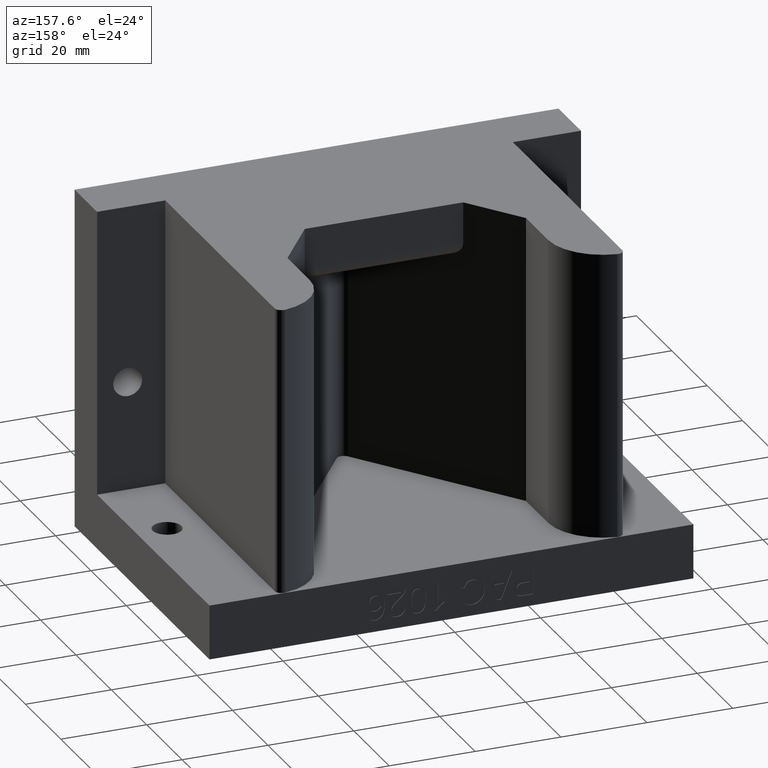
[diagram: clean part render]
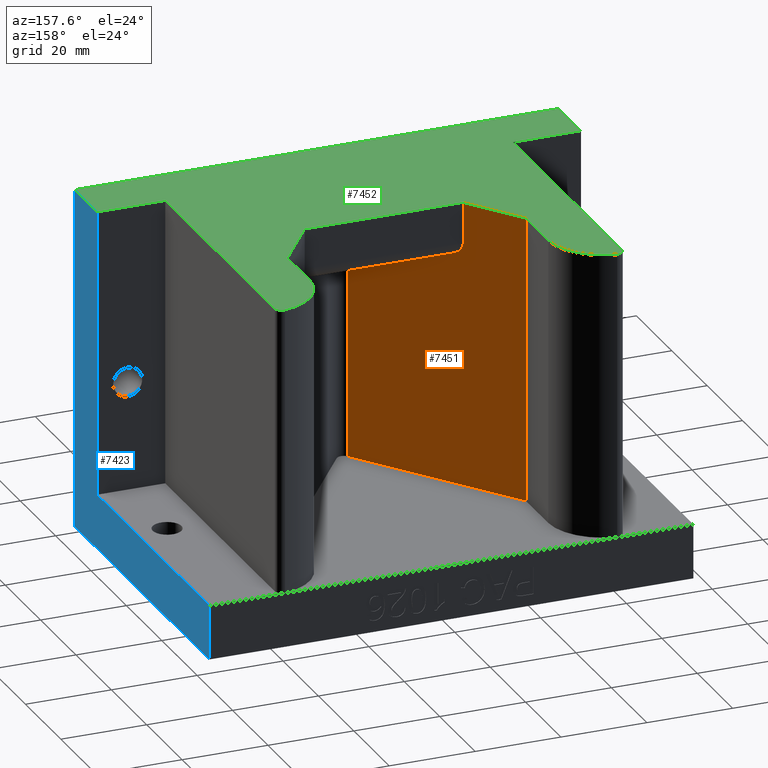
[diagram: same view with three faces highlighted in distinct colors, each labeled with its STEP entity id]
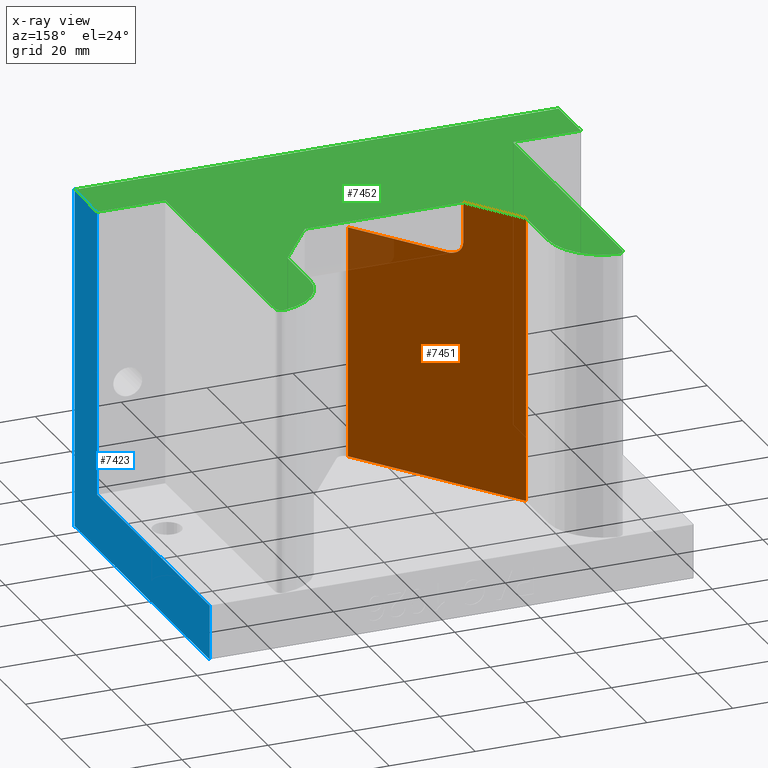
[diagram: x-ray of the same camera — body ghosted, the three highlighted faces saturated]
A machine part, auxiliary view with three faces highlighted in distinct colors.
The next image is the same camera in x-ray (body ghosted, the three faces saturated) — at least one of them is partly hidden behind the body in this view.
Their STEP definitions:

[orange] entity #7451 — the highlighted planar face has unit normal (-0.809, -0.5878, 0).
#221 = LINE ( 'NONE', #7052, #222 ) ;
#222 = VECTOR ( 'NONE', #7051, 39.37007874015748900 ) ;
#407 = DIRECTION ( 'NONE',  ( -0.0000000000000000000, -0.0000000000000000000, 1.000000000000000000 ) ) ;
#420 = CARTESIAN_POINT ( 'NONE',  ( -0.7265425280053518000, -1.554635595738830900E-016, -3.937007874019685500E-005 ) ) ;
#459 = DIRECTION ( 'NONE',  ( -0.0000000000000000000, -0.0000000000000000000, 1.000000000000000000 ) ) ;
#464 = CARTESIAN_POINT ( 'NONE',  ( -1.093749999999991600, 0.5054177255153523600, 0.5000000000000001100 ) ) ;
#525 = EDGE_LOOP ( 'NONE', ( #1392, #1396, #1388, #1387, #1386, #1391, #1401 ) ) ;
#527 = EDGE_CURVE ( 'NONE', #8565, #8544, #7413, .T. ) ;
#1386 = ORIENTED_EDGE ( 'NONE', *, *, #3193, .T. ) ;
#1387 = ORIENTED_EDGE ( 'NONE', *, *, #3108, .T. ) ;
#1388 = ORIENTED_EDGE ( 'NONE', *, *, #6970, .F. ) ;
#1391 = ORIENTED_EDGE ( 'NONE', *, *, #3126, .F. ) ;
#1392 = ORIENTED_EDGE ( 'NONE', *, *, #5826, .T. ) ;
#1396 = ORIENTED_EDGE ( 'NONE', *, *, #7544, .T. ) ;
#1401 = ORIENTED_EDGE ( 'NONE', *, *, #527, .T. ) ;
#1426 = LINE ( 'NONE', #464, #1435 ) ;
#1435 = VECTOR ( 'NONE', #459, 39.37007874015748100 ) ;
#1460 = VECTOR ( 'NONE', #407, 39.37007874015748100 ) ;
#1463 = LINE ( 'NONE', #420, #1460 ) ;
#1928 = DIRECTION ( 'NONE',  ( 0.5877852522924684700, -0.8090169943749507800, -0.0000000000000000000 ) ) ;
#2018 = CARTESIAN_POINT ( 'NONE',  ( 1.239269950325174900E-016, -1.000000000000000200, 2.625000000000000000 ) ) ;
#3108 = EDGE_CURVE ( 'NONE', #8557, #8579, #1426, .T. ) ;
#3126 = EDGE_CURVE ( 'NONE', #8565, #8532, #1463, .T. ) ;
#3193 = EDGE_CURVE ( 'NONE', #8579, #8532, #6015, .T. ) ;
#3896 = CARTESIAN_POINT ( 'NONE',  ( -0.05056356214843377900, -0.9304052272242743200, 0.5000000000000001100 ) ) ;
#3897 = CARTESIAN_POINT ( 'NONE',  ( -0.05056356214843375800, -0.9304052272242743200, 0.5000000000000001100 ) ) ;
#3898 = DIRECTION ( 'NONE',  ( -0.0000000000000000000, -0.0000000000000000000, -1.000000000000000000 ) ) ;
#3920 = CARTESIAN_POINT ( 'NONE',  ( -0.7265425280053518000, -1.554635595738830900E-016, 3.125000000000000000 ) ) ;
#3932 = CARTESIAN_POINT ( 'NONE',  ( -0.6357247120046830600, -0.1249999999999999000, 2.625000000000000000 ) ) ;
#3933 = CARTESIAN_POINT ( 'NONE',  ( -0.05056356214843377900, -0.9304052272242743200, 2.625000000000000000 ) ) ;
#3945 = CARTESIAN_POINT ( 'NONE',  ( -1.093749999999991600, 0.5054177255153523600, 0.5000000000000001100 ) ) ;
#3953 = CARTESIAN_POINT ( 'NONE',  ( -0.7265425280053518000, -1.554635595738830900E-016, 2.749999999999998700 ) ) ;
#3967 = CARTESIAN_POINT ( 'NONE',  ( -1.093749999999991600, 0.5054177255153523600, 3.125000000000000000 ) ) ;
#4063 = AXIS2_PLACEMENT_3D ( 'NONE', #6412, #6405, #6404 ) ;
#4328 = DIRECTION ( 'NONE',  ( 0.5877852522924688100, -0.8090169943749504500, 0.0000000000000000000 ) ) ;
#4329 = CARTESIAN_POINT ( 'NONE',  ( -1.093749999999991600, 0.5054177255153523600, 3.125000000000000000 ) ) ;
#5826 = EDGE_CURVE ( 'NONE', #8544, #8545, #6098, .T. ) ;
#6015 = LINE ( 'NONE', #4329, #6016 ) ;
#6016 = VECTOR ( 'NONE', #4328, 39.37007874015748900 ) ;
#6098 = LINE ( 'NONE', #2018, #6099 ) ;
#6099 = VECTOR ( 'NONE', #1928, 39.37007874015748900 ) ;
#6404 = DIRECTION ( 'NONE',  ( 0.5877852522924684700, -0.8090169943749507800, 0.0000000000000000000 ) ) ;
#6405 = DIRECTION ( 'NONE',  ( -0.8090169943749507800, -0.5877852522924684700, 0.0000000000000000000 ) ) ;
#6408 = PLANE ( 'NONE',  #4063 ) ;
#6412 = CARTESIAN_POINT ( 'NONE',  ( 1.239269950325174900E-016, -1.000000000000000200, 0.5000000000000001100 ) ) ;
#6970 = EDGE_CURVE ( 'NONE', #8557, #8528, #221, .T. ) ;
#7051 = DIRECTION ( 'NONE',  ( 0.5877852522924684700, -0.8090169943749507800, -0.0000000000000000000 ) ) ;
#7052 = CARTESIAN_POINT ( 'NONE',  ( 1.239269950325174900E-016, -1.000000000000000200, 0.5000000000000001100 ) ) ;
#7413 =( BOUNDED_CURVE ( )  B_SPLINE_CURVE ( 3, ( #8428, #8414, #8413, #8412 ),
 .UNSPECIFIED., .F., .F. ) 
 B_SPLINE_CURVE_WITH_KNOTS ( ( 4, 4 ),
 ( 8.741913579725642300E-015, 1.570796326794894300 ),
 .UNSPECIFIED. ) 
 CURVE ( )  GEOMETRIC_REPRESENTATION_ITEM ( )  RATIONAL_B_SPLINE_CURVE ( ( 1.000000000000000000, 0.8047378541243676000, 0.8047378541243676000, 1.000000000000000000 ) ) 
 REPRESENTATION_ITEM ( '' )  );
#7451 = ADVANCED_FACE ( 'NONE', ( #7571 ), #6408, .F. ) ;
#7544 = EDGE_CURVE ( 'NONE', #8545, #8528, #7677, .T. ) ;
#7571 = FACE_OUTER_BOUND ( 'NONE', #525, .T. ) ;
#7665 = VECTOR ( 'NONE', #3898, 39.37007874015748100 ) ;
#7677 = LINE ( 'NONE', #3897, #7665 ) ;
#8412 = CARTESIAN_POINT ( 'NONE',  ( -0.6357247120046830600, -0.1249999999999999000, 2.625000000000000000 ) ) ;
#8413 = CARTESIAN_POINT ( 'NONE',  ( -0.6889245569127703300, -0.05177669529663735800, 2.625000000000000000 ) ) ;
#8414 = CARTESIAN_POINT ( 'NONE',  ( -0.7265425280053516800, -7.767042014219261300E-016, 2.676776695296636500 ) ) ;
#8428 = CARTESIAN_POINT ( 'NONE',  ( -0.7265425280053518000, -1.554635595738830900E-016, 2.749999999999998700 ) ) ;
#8528 = VERTEX_POINT ( 'NONE', #3896 ) ;
#8532 = VERTEX_POINT ( 'NONE', #3920 ) ;
#8544 = VERTEX_POINT ( 'NONE', #3932 ) ;
#8545 = VERTEX_POINT ( 'NONE', #3933 ) ;
#8557 = VERTEX_POINT ( 'NONE', #3945 ) ;
#8565 = VERTEX_POINT ( 'NONE', #3953 ) ;
#8579 = VERTEX_POINT ( 'NONE', #3967 ) ;

[blue] entity #7423 — the highlighted planar face has unit normal (-1, -0, 0).
#191 = LINE ( 'NONE', #7108, #192 ) ;
#192 = VECTOR ( 'NONE', #7107, 39.37007874015748100 ) ;
#204 = FACE_OUTER_BOUND ( 'NONE', #6547, .T. ) ;
#1191 = VERTEX_POINT ( 'NONE', #8379 ) ;
#1484 = VECTOR ( 'NONE', #5490, 39.37007874015748100 ) ;
#1498 = LINE ( 'NONE', #5497, #1484 ) ;
#1503 = LINE ( 'NONE', #5462, #1504 ) ;
#1504 = VECTOR ( 'NONE', #5461, 39.37007874015748100 ) ;
#1519 = LINE ( 'NONE', #4369, #1521 ) ;
#1521 = VECTOR ( 'NONE', #4368, 39.37007874015748100 ) ;
#1527 = LINE ( 'NONE', #4366, #1528 ) ;
#1528 = VECTOR ( 'NONE', #4364, 39.37007874015748100 ) ;
#3156 = EDGE_CURVE ( 'NONE', #8534, #8573, #1498, .T. ) ;
#3160 = EDGE_CURVE ( 'NONE', #8530, #8573, #1503, .T. ) ;
#3186 = EDGE_CURVE ( 'NONE', #8530, #8524, #1519, .T. ) ;
#3187 = EDGE_CURVE ( 'NONE', #8524, #1191, #1527, .T. ) ;
#3191 = EDGE_CURVE ( 'NONE', #8534, #8583, #5776, .T. ) ;
#3899 = CARTESIAN_POINT ( 'NONE',  ( 2.218749999999999600, -1.500000000000000200, 0.0000000000000000000 ) ) ;
#3918 = CARTESIAN_POINT ( 'NONE',  ( 2.218749999999999600, -1.500000000000000200, 3.125000000000000000 ) ) ;
#3922 = CARTESIAN_POINT ( 'NONE',  ( 2.218749999999999600, -1.000000000000000000, 0.5000000000000001100 ) ) ;
#3961 = CARTESIAN_POINT ( 'NONE',  ( 2.218749999999999600, -1.000000000000000000, 3.125000000000000000 ) ) ;
#3971 = CARTESIAN_POINT ( 'NONE',  ( 2.218749999999999600, 1.500000000000000200, 0.5000000000000001100 ) ) ;
#4037 = AXIS2_PLACEMENT_3D ( 'NONE', #6629, #6623, #6622 ) ;
#4334 = DIRECTION ( 'NONE',  ( -1.092739197465705300E-016, 1.000000000000000000, 0.0000000000000000000 ) ) ;
#4335 = CARTESIAN_POINT ( 'NONE',  ( 2.218749999999999600, -1.000000000000000000, 0.5000000000000001100 ) ) ;
#4364 = DIRECTION ( 'NONE',  ( -9.106159978880878600E-017, 1.000000000000000000, -0.0000000000000000000 ) ) ;
#4366 = CARTESIAN_POINT ( 'NONE',  ( 2.218749999999999600, 1.500000000000000200, 0.0000000000000000000 ) ) ;
#4368 = DIRECTION ( 'NONE',  ( -0.0000000000000000000, -0.0000000000000000000, -1.000000000000000000 ) ) ;
#4369 = CARTESIAN_POINT ( 'NONE',  ( 2.218749999999999600, -1.500000000000000200, 3.125000000000000000 ) ) ;
#4513 = ORIENTED_EDGE ( 'NONE', *, *, #3191, .F. ) ;
#4518 = ORIENTED_EDGE ( 'NONE', *, *, #6915, .F. ) ;
#4558 = ORIENTED_EDGE ( 'NONE', *, *, #3160, .F. ) ;
#4559 = ORIENTED_EDGE ( 'NONE', *, *, #3156, .T. ) ;
#5461 = DIRECTION ( 'NONE',  ( -9.106159978880878600E-017, 1.000000000000000000, -0.0000000000000000000 ) ) ;
#5462 = CARTESIAN_POINT ( 'NONE',  ( 2.218749999999999600, 1.500000000000000200, 3.125000000000000000 ) ) ;
#5490 = DIRECTION ( 'NONE',  ( -0.0000000000000000000, -0.0000000000000000000, 1.000000000000000000 ) ) ;
#5497 = CARTESIAN_POINT ( 'NONE',  ( 2.218749999999999600, -1.000000000000000000, 0.5000000000000001100 ) ) ;
#5613 = ORIENTED_EDGE ( 'NONE', *, *, #3187, .T. ) ;
#5614 = ORIENTED_EDGE ( 'NONE', *, *, #3186, .T. ) ;
#5776 = LINE ( 'NONE', #4335, #6012 ) ;
#6012 = VECTOR ( 'NONE', #4334, 39.37007874015748100 ) ;
#6547 = EDGE_LOOP ( 'NONE', ( #4513, #4559, #4558, #5614, #5613, #4518 ) ) ;
#6622 = DIRECTION ( 'NONE',  ( 9.106159978880877400E-017, -1.000000000000000000, 0.0000000000000000000 ) ) ;
#6623 = DIRECTION ( 'NONE',  ( -1.000000000000000000, -9.106159978880877400E-017, 0.0000000000000000000 ) ) ;
#6628 = PLANE ( 'NONE',  #4037 ) ;
#6629 = CARTESIAN_POINT ( 'NONE',  ( 2.218749999999999600, 1.500000000000000200, 3.125000000000000000 ) ) ;
#6915 = EDGE_CURVE ( 'NONE', #8583, #1191, #191, .T. ) ;
#7107 = DIRECTION ( 'NONE',  ( -0.0000000000000000000, -0.0000000000000000000, -1.000000000000000000 ) ) ;
#7108 = CARTESIAN_POINT ( 'NONE',  ( 2.218749999999999600, 1.500000000000000200, 3.125000000000000000 ) ) ;
#7423 = ADVANCED_FACE ( 'NONE', ( #204 ), #6628, .F. ) ;
#8379 = CARTESIAN_POINT ( 'NONE',  ( 2.218749999999999600, 1.500000000000000200, 0.0000000000000000000 ) ) ;
#8524 = VERTEX_POINT ( 'NONE', #3899 ) ;
#8530 = VERTEX_POINT ( 'NONE', #3918 ) ;
#8534 = VERTEX_POINT ( 'NONE', #3922 ) ;
#8573 = VERTEX_POINT ( 'NONE', #3961 ) ;
#8583 = VERTEX_POINT ( 'NONE', #3971 ) ;

[green] entity #7452 — the highlighted planar face has unit normal (-0, 0, 1).
#297 = DIRECTION ( 'NONE',  ( -1.092739197465705300E-016, 1.000000000000000000, -0.0000000000000000000 ) ) ;
#298 = CARTESIAN_POINT ( 'NONE',  ( -1.593750000000000400, 1.499999999999999800, 3.125000000000000000 ) ) ;
#1220 = VERTEX_POINT ( 'NONE', #8346 ) ;
#1474 = VECTOR ( 'NONE', #297, 39.37007874015748100 ) ;
#1478 = LINE ( 'NONE', #298, #1474 ) ;
#1480 = LINE ( 'NONE', #5548, #1489 ) ;
#1482 = LINE ( 'NONE', #5589, #1483 ) ;
#1483 = VECTOR ( 'NONE', #5588, 39.37007874015748100 ) ;
#1486 = CIRCLE ( 'NONE', #4002, 0.06249999999999995100 ) ;
#1488 = CIRCLE ( 'NONE', #4013, 0.06249999999999995100 ) ;
#1489 = VECTOR ( 'NONE', #5544, 39.37007874015748100 ) ;
#1491 = LINE ( 'NONE', #5543, #1492 ) ;
#1492 = VECTOR ( 'NONE', #5542, 39.37007874015748100 ) ;
#1495 = VECTOR ( 'NONE', #5463, 39.37007874015748100 ) ;
#1496 = LINE ( 'NONE', #4709, #1507 ) ;
#1497 = LINE ( 'NONE', #5491, #1500 ) ;
#1500 = VECTOR ( 'NONE', #5487, 39.37007874015748100 ) ;
#1502 = LINE ( 'NONE', #5464, #1495 ) ;
#1503 = LINE ( 'NONE', #5462, #1504 ) ;
#1504 = VECTOR ( 'NONE', #5461, 39.37007874015748100 ) ;
#1507 = VECTOR ( 'NONE', #4707, 39.37007874015748100 ) ;
#1508 = CIRCLE ( 'NONE', #4017, 0.4999999999999998300 ) ;
#1511 = VECTOR ( 'NONE', #4391, 39.37007874015748100 ) ;
#1512 = CIRCLE ( 'NONE', #4018, 0.5000000000000001100 ) ;
#1515 = LINE ( 'NONE', #4656, #1516 ) ;
#1516 = VECTOR ( 'NONE', #4655, 39.37007874015748100 ) ;
#1518 = LINE ( 'NONE', #4394, #1511 ) ;
#1525 = VECTOR ( 'NONE', #4336, 39.37007874015748100 ) ;
#3140 = EDGE_CURVE ( 'NONE', #8561, #8553, #1478, .T. ) ;
#3143 = EDGE_CURVE ( 'NONE', #8523, #8573, #1482, .T. ) ;
#3144 = EDGE_CURVE ( 'NONE', #8552, #8541, #1486, .T. ) ;
#3145 = EDGE_CURVE ( 'NONE', #8525, #8553, #1488, .T. ) ;
#3148 = EDGE_CURVE ( 'NONE', #8559, #8549, #1480, .T. ) ;
#3149 = EDGE_CURVE ( 'NONE', #8532, #8531, #1491, .T. ) ;
#3157 = EDGE_CURVE ( 'NONE', #1220, #8561, #1497, .T. ) ;
#3159 = EDGE_CURVE ( 'NONE', #8552, #8523, #1502, .T. ) ;
#3160 = EDGE_CURVE ( 'NONE', #8530, #8573, #1503, .T. ) ;
#3163 = EDGE_CURVE ( 'NONE', #8525, #8548, #1508, .T. ) ;
#3165 = EDGE_CURVE ( 'NONE', #8548, #8579, #1496, .T. ) ;
#3166 = EDGE_CURVE ( 'NONE', #8549, #8541, #1512, .T. ) ;
#3175 = EDGE_CURVE ( 'NONE', #8584, #8530, #1515, .T. ) ;
#3180 = EDGE_CURVE ( 'NONE', #1220, #8584, #1518, .T. ) ;
#3190 = EDGE_CURVE ( 'NONE', #8531, #8559, #4500, .T. ) ;
#3193 = EDGE_CURVE ( 'NONE', #8579, #8532, #6015, .T. ) ;
#3914 = CARTESIAN_POINT ( 'NONE',  ( 1.593750000000000200, -0.9999999999999994400, 3.125000000000000000 ) ) ;
#3915 = CARTESIAN_POINT ( 'NONE',  ( -1.522321428571430400, 1.494871659305395000, 3.125000000000000000 ) ) ;
#3918 = CARTESIAN_POINT ( 'NONE',  ( 2.218749999999999600, -1.500000000000000200, 3.125000000000000000 ) ) ;
#3919 = CARTESIAN_POINT ( 'NONE',  ( 0.7265425280053632300, 2.248215964962356500E-017, 3.125000000000000000 ) ) ;
#3920 = CARTESIAN_POINT ( 'NONE',  ( -0.7265425280053518000, -1.554635595738830900E-016, 3.125000000000000000 ) ) ;
#3929 = CARTESIAN_POINT ( 'NONE',  ( 1.522321428571426800, 1.494871659305392100, 3.125000000000000000 ) ) ;
#3936 = CARTESIAN_POINT ( 'NONE',  ( -1.093749999999991600, 1.000000000000000200, 3.125000000000000000 ) ) ;
#3937 = CARTESIAN_POINT ( 'NONE',  ( 1.093750000000008700, 1.000000000000000000, 3.125000000000000000 ) ) ;
#3940 = CARTESIAN_POINT ( 'NONE',  ( 1.593749999999999600, 1.433012701892218100, 3.125000000000000000 ) ) ;
#3941 = CARTESIAN_POINT ( 'NONE',  ( -1.593750000000000400, 1.433012701892221000, 3.125000000000000000 ) ) ;
#3947 = CARTESIAN_POINT ( 'NONE',  ( 1.093750000000008900, 0.5054177255153532400, 3.125000000000000000 ) ) ;
#3949 = CARTESIAN_POINT ( 'NONE',  ( -1.593750000000000200, -1.000000000000000000, 3.125000000000000000 ) ) ;
#3961 = CARTESIAN_POINT ( 'NONE',  ( 2.218749999999999600, -1.000000000000000000, 3.125000000000000000 ) ) ;
#3967 = CARTESIAN_POINT ( 'NONE',  ( -1.093749999999991600, 0.5054177255153523600, 3.125000000000000000 ) ) ;
#3972 = CARTESIAN_POINT ( 'NONE',  ( -2.218750000000000000, -1.500000000000000200, 3.125000000000000000 ) ) ;
#4002 = AXIS2_PLACEMENT_3D ( 'NONE', #5587, #5585, #5584 ) ;
#4013 = AXIS2_PLACEMENT_3D ( 'NONE', #5583, #5582, #5581 ) ;
#4017 = AXIS2_PLACEMENT_3D ( 'NONE', #5455, #5435, #5434 ) ;
#4018 = AXIS2_PLACEMENT_3D ( 'NONE', #4704, #4691, #4678 ) ;
#4064 = AXIS2_PLACEMENT_3D ( 'NONE', #6407, #6401, #6400 ) ;
#4328 = DIRECTION ( 'NONE',  ( 0.5877852522924688100, -0.8090169943749504500, 0.0000000000000000000 ) ) ;
#4329 = CARTESIAN_POINT ( 'NONE',  ( -1.093749999999991600, 0.5054177255153523600, 3.125000000000000000 ) ) ;
#4336 = DIRECTION ( 'NONE',  ( 0.5877852522924743600, 0.8090169943749465600, 0.0000000000000000000 ) ) ;
#4337 = CARTESIAN_POINT ( 'NONE',  ( 0.7265425280053632300, 2.248215964962356500E-017, 3.125000000000000000 ) ) ;
#4391 = DIRECTION ( 'NONE',  ( 9.106159978880878600E-017, -1.000000000000000000, 0.0000000000000000000 ) ) ;
#4394 = CARTESIAN_POINT ( 'NONE',  ( -2.218750000000000400, 1.500000000000000200, 3.125000000000000000 ) ) ;
#4500 = LINE ( 'NONE', #4337, #1525 ) ;
#4519 = ORIENTED_EDGE ( 'NONE', *, *, #3180, .T. ) ;
#4520 = ORIENTED_EDGE ( 'NONE', *, *, #3140, .F. ) ;
#4522 = ORIENTED_EDGE ( 'NONE', *, *, #3175, .T. ) ;
#4523 = ORIENTED_EDGE ( 'NONE', *, *, #3143, .F. ) ;
#4524 = ORIENTED_EDGE ( 'NONE', *, *, #3163, .F. ) ;
#4525 = ORIENTED_EDGE ( 'NONE', *, *, #3160, .T. ) ;
#4526 = ORIENTED_EDGE ( 'NONE', *, *, #3145, .T. ) ;
#4529 = ORIENTED_EDGE ( 'NONE', *, *, #3157, .F. ) ;
#4562 = ORIENTED_EDGE ( 'NONE', *, *, #3149, .F. ) ;
#4577 = ORIENTED_EDGE ( 'NONE', *, *, #3165, .F. ) ;
#4580 = ORIENTED_EDGE ( 'NONE', *, *, #3193, .F. ) ;
#4583 = ORIENTED_EDGE ( 'NONE', *, *, #3190, .F. ) ;
#4655 = DIRECTION ( 'NONE',  ( 1.000000000000000000, 0.0000000000000000000, 0.0000000000000000000 ) ) ;
#4656 = CARTESIAN_POINT ( 'NONE',  ( -2.218750000000000000, -1.500000000000000200, 3.125000000000000000 ) ) ;
#4678 = DIRECTION ( 'NONE',  ( 1.000000000000000000, 0.0000000000000000000, 0.0000000000000000000 ) ) ;
#4691 = DIRECTION ( 'NONE',  ( -0.0000000000000000000, -0.0000000000000000000, -1.000000000000000000 ) ) ;
#4704 = CARTESIAN_POINT ( 'NONE',  ( 1.593750000000008700, 1.000000000000000200, 3.125000000000000000 ) ) ;
#4707 = DIRECTION ( 'NONE',  ( 0.0000000000000000000, -1.000000000000000000, 0.0000000000000000000 ) ) ;
#4709 = CARTESIAN_POINT ( 'NONE',  ( -1.093749999999991600, 1.000000000000000200, 3.125000000000000000 ) ) ;
#5434 = DIRECTION ( 'NONE',  ( 1.000000000000000000, 0.0000000000000000000, 0.0000000000000000000 ) ) ;
#5435 = DIRECTION ( 'NONE',  ( -0.0000000000000000000, -0.0000000000000000000, -1.000000000000000000 ) ) ;
#5455 = CARTESIAN_POINT ( 'NONE',  ( -1.593749999999991300, 1.000000000000000200, 3.125000000000000000 ) ) ;
#5461 = DIRECTION ( 'NONE',  ( -9.106159978880878600E-017, 1.000000000000000000, -0.0000000000000000000 ) ) ;
#5462 = CARTESIAN_POINT ( 'NONE',  ( 2.218749999999999600, 1.500000000000000200, 3.125000000000000000 ) ) ;
#5463 = DIRECTION ( 'NONE',  ( 1.092739197465705400E-016, -1.000000000000000000, 0.0000000000000000000 ) ) ;
#5464 = CARTESIAN_POINT ( 'NONE',  ( 1.593749999999999600, 1.500000000000000200, 3.125000000000000000 ) ) ;
#5487 = DIRECTION ( 'NONE',  ( 1.000000000000000000, -0.0000000000000000000, -0.0000000000000000000 ) ) ;
#5491 = CARTESIAN_POINT ( 'NONE',  ( -1.593750000000000200, -1.000000000000000000, 3.125000000000000000 ) ) ;
#5542 = DIRECTION ( 'NONE',  ( 1.000000000000000000, 1.224606353822377000E-016, -0.0000000000000000000 ) ) ;
#5543 = CARTESIAN_POINT ( 'NONE',  ( 0.7265425280053632300, 2.248215964962356500E-017, 3.125000000000000000 ) ) ;
#5544 = DIRECTION ( 'NONE',  ( -2.761773050308809700E-016, 1.000000000000000000, 0.0000000000000000000 ) ) ;
#5548 = CARTESIAN_POINT ( 'NONE',  ( 1.093750000000008900, 0.5054177255153532400, 3.125000000000000000 ) ) ;
#5581 = DIRECTION ( 'NONE',  ( 1.000000000000000000, 0.0000000000000000000, 0.0000000000000000000 ) ) ;
#5582 = DIRECTION ( 'NONE',  ( -0.0000000000000000000, 0.0000000000000000000, 1.000000000000000000 ) ) ;
#5583 = CARTESIAN_POINT ( 'NONE',  ( -1.531250000000000400, 1.433012701892221000, 3.125000000000000000 ) ) ;
#5584 = DIRECTION ( 'NONE',  ( 1.000000000000000000, 0.0000000000000000000, 0.0000000000000000000 ) ) ;
#5585 = DIRECTION ( 'NONE',  ( -0.0000000000000000000, 0.0000000000000000000, 1.000000000000000000 ) ) ;
#5587 = CARTESIAN_POINT ( 'NONE',  ( 1.531249999999999800, 1.433012701892218100, 3.125000000000000000 ) ) ;
#5588 = DIRECTION ( 'NONE',  ( 1.000000000000000000, -8.741913579725647200E-016, -0.0000000000000000000 ) ) ;
#5589 = CARTESIAN_POINT ( 'NONE',  ( 2.218749999999999600, -1.000000000000000000, 3.125000000000000000 ) ) ;
#5609 = ORIENTED_EDGE ( 'NONE', *, *, #3166, .F. ) ;
#5610 = ORIENTED_EDGE ( 'NONE', *, *, #3159, .F. ) ;
#5611 = ORIENTED_EDGE ( 'NONE', *, *, #3148, .F. ) ;
#5612 = ORIENTED_EDGE ( 'NONE', *, *, #3144, .T. ) ;
#6015 = LINE ( 'NONE', #4329, #6016 ) ;
#6016 = VECTOR ( 'NONE', #4328, 39.37007874015748900 ) ;
#6181 = EDGE_LOOP ( 'NONE', ( #4524, #4526, #4520, #4529, #4519, #4522, #4525, #4523, #5610, #5612, #5609, #5611, #4583, #4562, #4580, #4577 ) ) ;
#6400 = DIRECTION ( 'NONE',  ( 1.000000000000000000, 0.0000000000000000000, 0.0000000000000000000 ) ) ;
#6401 = DIRECTION ( 'NONE',  ( -0.0000000000000000000, 0.0000000000000000000, 1.000000000000000000 ) ) ;
#6406 = PLANE ( 'NONE',  #4064 ) ;
#6407 = CARTESIAN_POINT ( 'NONE',  ( -2.218750000000000000, -1.500000000000000200, 3.125000000000000000 ) ) ;
#7452 = ADVANCED_FACE ( 'NONE', ( #7570 ), #6406, .T. ) ;
#7570 = FACE_OUTER_BOUND ( 'NONE', #6181, .T. ) ;
#8346 = CARTESIAN_POINT ( 'NONE',  ( -2.218750000000000000, -0.9999999999999988900, 3.125000000000000000 ) ) ;
#8523 = VERTEX_POINT ( 'NONE', #3914 ) ;
#8525 = VERTEX_POINT ( 'NONE', #3915 ) ;
#8530 = VERTEX_POINT ( 'NONE', #3918 ) ;
#8531 = VERTEX_POINT ( 'NONE', #3919 ) ;
#8532 = VERTEX_POINT ( 'NONE', #3920 ) ;
#8541 = VERTEX_POINT ( 'NONE', #3929 ) ;
#8548 = VERTEX_POINT ( 'NONE', #3936 ) ;
#8549 = VERTEX_POINT ( 'NONE', #3937 ) ;
#8552 = VERTEX_POINT ( 'NONE', #3940 ) ;
#8553 = VERTEX_POINT ( 'NONE', #3941 ) ;
#8559 = VERTEX_POINT ( 'NONE', #3947 ) ;
#8561 = VERTEX_POINT ( 'NONE', #3949 ) ;
#8573 = VERTEX_POINT ( 'NONE', #3961 ) ;
#8579 = VERTEX_POINT ( 'NONE', #3967 ) ;
#8584 = VERTEX_POINT ( 'NONE', #3972 ) ;